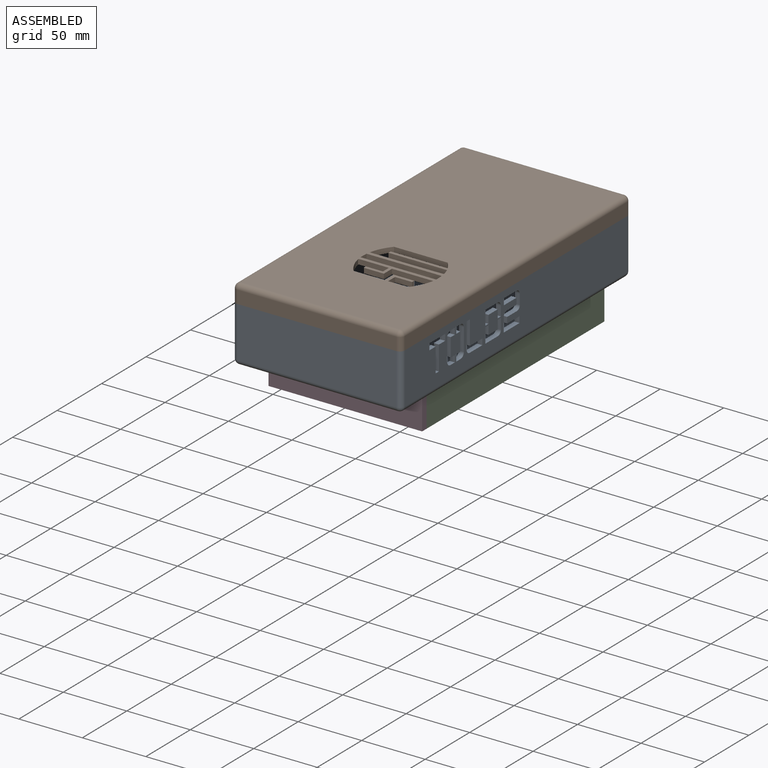
[diagram: assembled view]
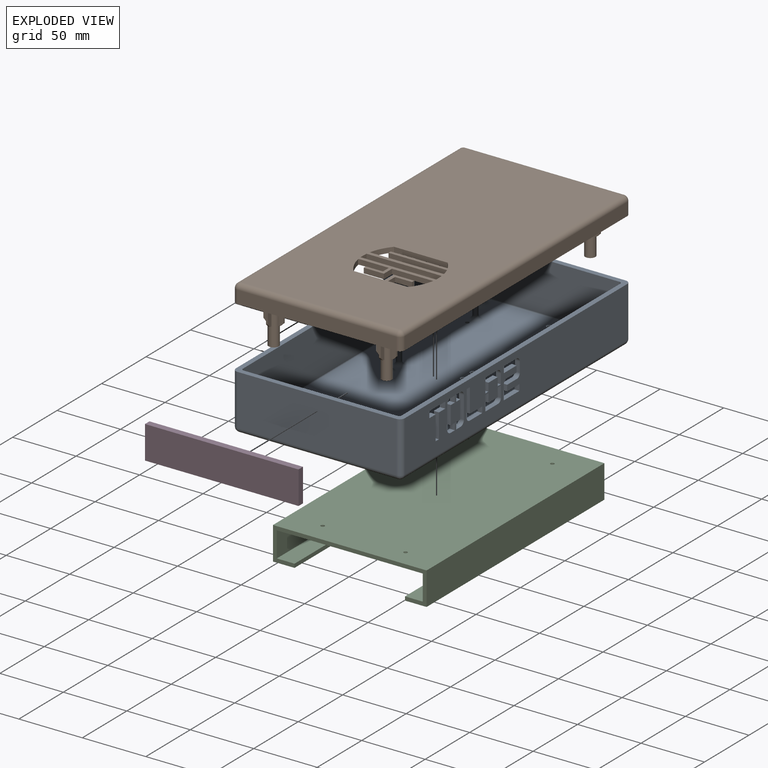
[diagram: exploded view]
GUIDED TOUR — FREECAD ASSEMBLY "FINALES"

This assembly has 4 components, labeled P0..P3 below (a component is one placed body or linked part; the same part can appear more than once), held together by 0 modeled joints plus 3 derived contact edges. A joint is a constraint between two components; its type names the relative motion it leaves free:
  CONTACT — a derived adjacency edge — the two components touch in the source model (clearance under 2% of the assembly's diagonal); it is measured from the geometry, not a modeled constraint.
Axis/direction vectors are unit vectors and 'through' points are millimeter coordinates, both in the assembly's world frame.

MATES
  1. CONTACT "contact_0_1": P0 <-> P1, contact direction (0.000, -0.298, 0.955) through (124.88, -1.33, 40.00) mm (derived from contact, not a modeled constraint)
  2. CONTACT "contact_0_2": P0 <-> P2, contact direction (0.000, 0.000, -1.000) through (97.41, -201.77, -4.00) mm (derived from contact, not a modeled constraint)
  3. CONTACT "contact_2_3": P2 <-> P3, contact direction (0.000, -1.000, 0.000) through (2.00, -217.00, -30.00) mm (derived from contact, not a modeled constraint)

ASSEMBLY ORDER
  1. P1 — the base component [order verified]
  2. P0 [order verified]
  3. P3 [order verified]
  4. P2 [order verified]
Order-tag legend:
  [order verified] — this step's position reverses a verified removal order: the component was checked to insert without passing through the ones already placed.

Of the 4 components, 4 carry a construction recipe — the FreeCAD feature program (sketches with constraints, then the solid features that consume them) that regenerates the part from scratch, quoted from this document or from the linked companion document it references; the rest are supplied as boundary geometry only. The tour below walks the components in assembly order: each is shown spotlighted twice — in the assembled view, then in the exploded view, where a leader line traces a displaced component back to its assembled socket (components that stay in place when exploded have no leader line; saturated green if recipe-attached, orange if geometry-only; every other component desaturated gray) — followed by its recipe or geometry summary and the mates that hold it.
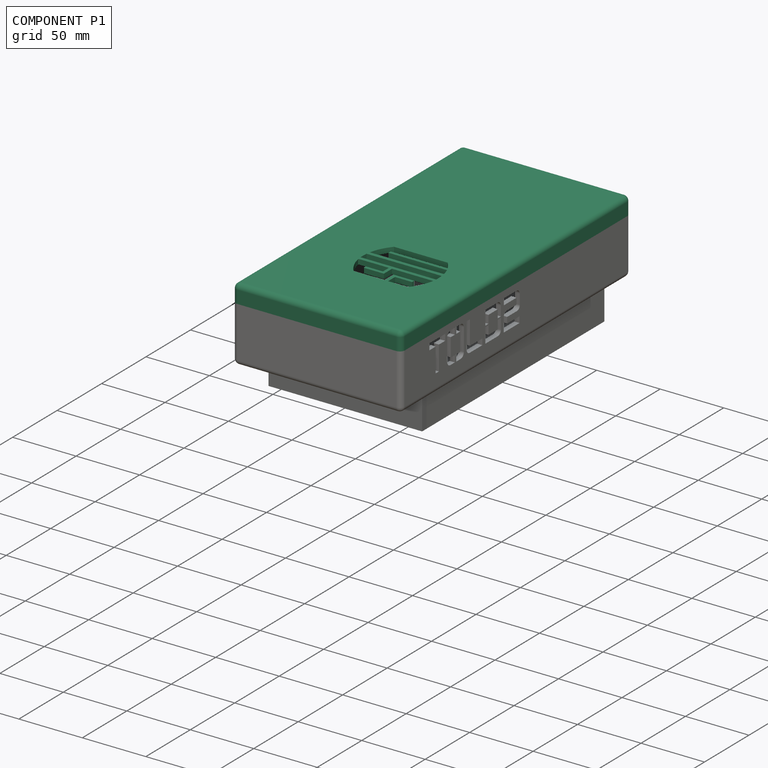
[diagram: component P1 — assembled]
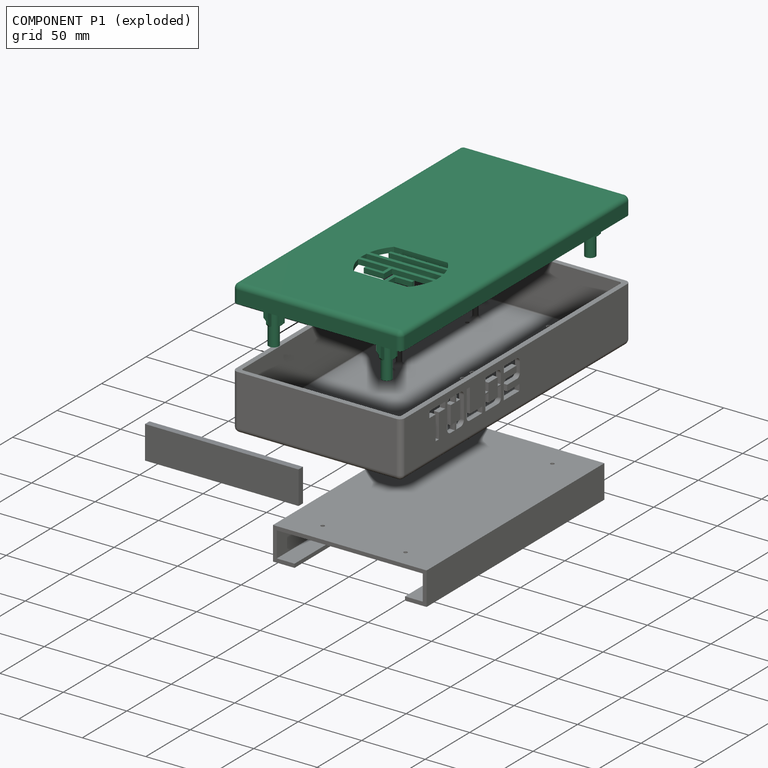
[diagram: component P1 — exploded]
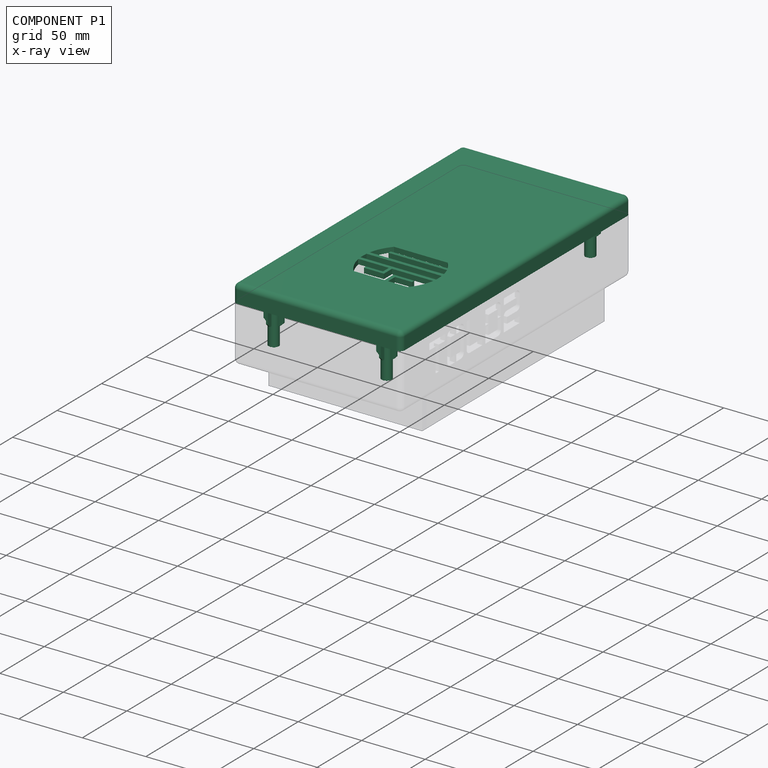
[diagram: component P1 — x-ray view]
COMPONENT P1 — recipe-attached ("Tapa", modeled in this document).
Held by: resting contact with P0 (derived edge).
Construction recipe (the document's own serialized feature program — sketch geometry with constraints, then the solid features built on it; lengths are millimeters unless a unit is written):

FEATURE [Sketcher::SketchObject] Sketch004
  FullyConstrained = true
  MapMode = 5
  Support = -> [XY_Plane001]
  sketch-geometry (4):
    g0: LineSegment StartX=0 StartY=0 StartZ=0 EndX=125 EndY=0 EndZ=0
    g1: LineSegment StartX=125 StartY=0 StartZ=0 EndX=125 EndY=-250 EndZ=0
    g2: LineSegment StartX=125 StartY=-250 StartZ=0 EndX=0 EndY=-250 EndZ=0
    g3: LineSegment StartX=0 StartY=-250 StartZ=0 EndX=0 EndY=0 EndZ=0
  constraints (11):
    c: Coincident(g0,g1)
    c: Coincident(g1,g2)
    c: Coincident(g2,g3)
    c: Coincident(g3,g0)
    c: Horizontal(g0)
    c: Horizontal(g2)
    c: Vertical(g1)
    c: Vertical(g3)
    c: Coincident(g0,g-1)
    c: DistanceY(g1,g1) = 250
    c: DistanceX(g2,g2) = 125
FEATURE [PartDesign::Pad] Pad004
  AlongSketchNormal = false
  Direction = (0,0,1)
  Length = 10
  Length2 = 100
  Profile = -> Sketch004
  Type = 0
FEATURE [PartDesign::Thickness] Thickness001
  Base = -> Pad004 [Face5]
  BaseFeature = -> Pad004
  Intersection = false
  Join = 0
  Mode = 0
  SupportTransform = false
  Value = 4
FEATURE [PartDesign::Fillet] Fillet004
  Base = -> Thickness001 [Edge1,Edge4,Edge12,Edge8,Edge10,Edge5,Edge7,Edge2]
  BaseFeature = -> Thickness001
  Radius = 2
  SupportTransform = false
  UseAllEdges = false
FEATURE [Sketcher::SketchObject] Sketch005
  ExternalGeometry = -> [Fillet004]
  FullyConstrained = true
  MapMode = 5
  Placement = pos=(0,0,10) rot=(1,0,0;3.14159rad)
  Support = -> [Fillet004]
  sketch-geometry (12):
    g0: Circle CenterX=18 CenterY=239 CenterZ=0 NormalX=0 NormalY=0 NormalZ=1 AngleXU=0 Radius=4
    g1: LineSegment StartX=18 StartY=239 StartZ=0 EndX=18 EndY=248 EndZ=0
    g2: LineSegment StartX=18 StartY=239 StartZ=0 EndX=2 EndY=239 EndZ=0
    g3: Circle CenterX=107 CenterY=239 CenterZ=0 NormalX=0 NormalY=0 NormalZ=1 AngleXU=0 Radius=4
    g4: LineSegment StartX=107 StartY=239 StartZ=0 EndX=123 EndY=239 EndZ=0
    g5: LineSegment StartX=107 StartY=239 StartZ=0 EndX=107 EndY=248 EndZ=0
    g6: Circle CenterX=18 CenterY=10 CenterZ=0 NormalX=0 NormalY=0 NormalZ=1 AngleXU=0 Radius=4
    g7: LineSegment StartX=18 StartY=10 StartZ=0 EndX=18 EndY=0 EndZ=0
    g8: LineSegment StartX=18 StartY=10 StartZ=0 EndX=2 EndY=10 EndZ=0
    g9: Circle CenterX=107 CenterY=10 CenterZ=0 NormalX=0 NormalY=0 NormalZ=1 AngleXU=0 Radius=4
    g10: LineSegment StartX=107 StartY=10 StartZ=0 EndX=123 EndY=10 EndZ=0
    g11: LineSegment StartX=107 StartY=10 StartZ=0 EndX=107 EndY=0 EndZ=0
  constraints (36):
    c: Coincident(g1,g0)
    c: PointOnObject(g1,g-3)
    c: Vertical(g1)
    c: Coincident(g2,g0)
    c: PointOnObject(g2,g-4)
    c: Horizontal(g2)
    c: DistanceY(g1,g1) = 9
    c: DistanceX(g2,g2) = 16
    c: Radius(g0) = 4
    c: Coincident(g4,g3)
    c: PointOnObject(g4,g-5)
    c: Horizontal(g4)
    c: Coincident(g5,g3)
    c: PointOnObject(g5,g-3)
    c: Vertical(g5)
    c: Radius(g3) = 4
    c: DistanceX(g4,g4) = 16
    c: DistanceY(g5,g5) = 9
    c: Radius(g6) = 4
    c: Coincident(g7,g6)
    c: PointOnObject(g7,g-1)
    c: Vertical(g7)
    c: DistanceY(g7,g7) = 10
    c: Coincident(g8,g6)
    c: PointOnObject(g8,g-4)
    c: Horizontal(g8)
    c: DistanceX(g8,g8) = 16
    c: Coincident(g10,g9)
    c: PointOnObject(g10,g-5)
    c: Horizontal(g10)
    c: DistanceX(g10,g10) = 16
    c: Coincident(g11,g9)
    c: PointOnObject(g11,g-1)
    c: Vertical(g11)
    c: DistanceY(g11,g11) = 10
    c: Radius(g9) = 4
FEATURE [PartDesign::Pad] Pad005
  AlongSketchNormal = false
  BaseFeature = -> Fillet004
  Direction = (0,0,-1)
  Length = 40
  Length2 = 100
  Profile = -> Sketch005
  Type = 0
FEATURE [PartDesign::Pad] Pad006
  AlongSketchNormal = false
  BaseFeature = -> Pad005
  Direction = (0,0,-1)
  Length = 10
  Length2 = 100
  Profile = -> Pad005 [Face42,Face43,Face40,Face41]
  Reversed = true
  Type = 3
  UpToFace = -> Pad005 [Face39]
FEATURE [Sketcher::SketchObject] Sketch006
  ExternalGeometry = -> [Pad006]
  FullyConstrained = true
  MapMode = 5
  Placement = pos=(0,0,10) rot=(1,0,0;3.14159rad)
  Support = -> [Pad006]
  sketch-geometry (4):
    g0: Circle CenterX=107 CenterY=10 CenterZ=0 NormalX=0 NormalY=0 NormalZ=1 AngleXU=0 Radius=1.26
    g1: Circle CenterX=18 CenterY=10 CenterZ=0 NormalX=0 NormalY=0 NormalZ=1 AngleXU=0 Radius=1.26
    g2: Circle CenterX=18 CenterY=239 CenterZ=0 NormalX=0 NormalY=0 NormalZ=1 AngleXU=0 Radius=1.26
    g3: Circle CenterX=107 CenterY=239 CenterZ=0 NormalX=0 NormalY=0 NormalZ=1 AngleXU=0 Radius=1.26
  constraints (8):
    c: Coincident(g0,g-6)
    c: Coincident(g1,g-5)
    c: Coincident(g2,g-4)
    c: Coincident(g3,g-3)
    c: Equal(g3,g2)
    c: Equal(g2,g1)
    c: Equal(g1,g0)
    c: Radius(g1) = 1.26
FEATURE [PartDesign::Pocket] Pocket002
  BaseFeature = -> Pad006
  Direction = (1,1,1)
  Length = 5
  Length2 = 100
  Profile = -> Sketch006
  Reversed = true
  Type = 1
FEATURE [PartDesign::SubShapeBinder] Import  label="Import(path873)"
  BindCopyOnChange = 0
  BindMode = 0
  ClaimChildren = false
  Context = -> Part001 [Body001.Import.]
  Fuse = false
  MakeFace = false
  OffsetFill = false
  OffsetIntersection = false
  OffsetJoinType = 0
  OffsetOpenResult = false
  PartialLoad = false
  Relative = true
  Support = -> [path873]
  _Version = 8
FEATURE [PartDesign::Pocket] Pocket003
  BaseFeature = -> Pocket002
  Direction = (1,1,1)
  Length = 5
  Length2 = 100
  Profile = -> Import
  Type = 0
FEATURE [PartDesign::SubShapeBinder] Import001  label="Import001(path875)"
  BindCopyOnChange = 0
  BindMode = 0
  ClaimChildren = false
  Context = -> Part001 [Body001.Import001.]
  Fuse = false
  MakeFace = false
  OffsetFill = false
  OffsetIntersection = false
  OffsetJoinType = 0
  OffsetOpenResult = false
  PartialLoad = false
  Relative = true
  Support = -> [path875]
  _Version = 8
FEATURE [PartDesign::Pocket] Pocket004
  BaseFeature = -> Pocket003
  Direction = (1,1,1)
  Length = 5
  Length2 = 100
  Profile = -> Import001
  Type = 0
FEATURE [PartDesign::SubShapeBinder] Import002  label="Import002(path871)"
  BindCopyOnChange = 0
  BindMode = 0
  ClaimChildren = false
  Context = -> Part001 [Body001.Import002.]
  Fuse = false
  MakeFace = false
  OffsetFill = false
  OffsetIntersection = false
  OffsetJoinType = 0
  OffsetOpenResult = false
  PartialLoad = false
  Relative = true
  Support = -> [path871]
  _Version = 8
FEATURE [PartDesign::Pocket] Pocket005
  BaseFeature = -> Pocket004
  Direction = (0,0,-1)
  Length = 5
  Length2 = 100
  Profile = -> Import002
  Type = 0
FEATURE [Sketcher::SketchObject] Sketch007
  FullyConstrained = false
  MapMode = 5
  Placement = pos=(0,0,10) rot=(1,0,0;3.14159rad)
  Support = -> [Pocket005]
  sketch-geometry (68):
    g0: LineSegment StartX=17.395 StartY=242.881 StartZ=0 EndX=18.895 EndY=242.881 EndZ=0
    g1: LineSegment StartX=18.895 StartY=242.881 StartZ=0 EndX=18.895 EndY=246.881 EndZ=0
    g2: LineSegment StartX=18.895 StartY=246.881 StartZ=0 EndX=17.395 EndY=246.881 EndZ=0
    g3: LineSegment StartX=17.395 StartY=246.881 StartZ=0 EndX=17.395 EndY=242.881 EndZ=0
    g4: LineSegment StartX=17.2583 StartY=235.041 StartZ=0 EndX=18.7583 EndY=235.041 EndZ=0
    g5: LineSegment StartX=18.7583 StartY=235.041 StartZ=0 EndX=18.7583 EndY=232.041 EndZ=0
    g6: LineSegment StartX=18.7583 StartY=232.041 StartZ=0 EndX=17.2583 EndY=232.041 EndZ=0
    g7: LineSegment StartX=17.2583 StartY=232.041 StartZ=0 EndX=17.2583 EndY=235.041 EndZ=0
    g8: LineSegment StartX=21.9214 StartY=239.356 StartZ=0 EndX=25.9214 EndY=239.356 EndZ=0
    g9: LineSegment StartX=25.9214 StartY=239.356 StartZ=0 EndX=25.9214 EndY=237.856 EndZ=0
    g10: LineSegment StartX=25.9214 StartY=237.856 StartZ=0 EndX=21.9214 EndY=237.856 EndZ=0
    g11: LineSegment StartX=21.9214 StartY=237.856 StartZ=0 EndX=21.9214 EndY=239.356 EndZ=0
    g12: LineSegment StartX=14.1091 StartY=239.356 StartZ=0 EndX=10.1091 EndY=239.356 EndZ=0
    g13: LineSegment StartX=10.1091 StartY=239.356 StartZ=0 EndX=10.1091 EndY=237.856 EndZ=0
    g14: LineSegment StartX=10.1091 StartY=237.856 StartZ=0 EndX=14.1091 EndY=237.856 EndZ=0
    g15: LineSegment StartX=14.1091 StartY=237.856 StartZ=0 EndX=14.1091 EndY=239.356 EndZ=0
    g16: LineSegment StartX=21.9214 StartY=239.356 StartZ=0 EndX=14.1091 EndY=239.356 EndZ=0
    g17: LineSegment StartX=106.3 StartY=242.893 StartZ=0 EndX=107.8 EndY=242.893 EndZ=0
    g18: LineSegment StartX=107.8 StartY=242.893 StartZ=0 EndX=107.8 EndY=246.893 EndZ=0
    g19: LineSegment StartX=107.8 StartY=246.893 StartZ=0 EndX=106.3 EndY=246.893 EndZ=0
    g20: LineSegment StartX=106.3 StartY=246.893 StartZ=0 EndX=106.3 EndY=242.893 EndZ=0
    g21: LineSegment StartX=106.24 StartY=235.097 StartZ=0 EndX=107.74 EndY=235.097 EndZ=0
    g22: LineSegment StartX=107.74 StartY=235.097 StartZ=0 EndX=107.74 EndY=231.097 EndZ=0
    g23: LineSegment StartX=107.74 StartY=231.097 StartZ=0 EndX=106.24 EndY=231.097 EndZ=0
    g24: LineSegment StartX=106.24 StartY=231.097 StartZ=0 EndX=106.24 EndY=235.097 EndZ=0
    g25: LineSegment StartX=110.88 StartY=239.6 StartZ=0 EndX=114.88 EndY=239.6 EndZ=0
    g26: LineSegment StartX=114.88 StartY=239.6 StartZ=0 EndX=114.88 EndY=238.1 EndZ=0
    g27: LineSegment StartX=114.88 StartY=238.1 StartZ=0 EndX=110.88 EndY=238.1 EndZ=0
    g28: LineSegment StartX=110.88 StartY=238.1 StartZ=0 EndX=110.88 EndY=239.6 EndZ=0
    g29: LineSegment StartX=103.116 StartY=239.665 StartZ=0 EndX=99.1165 EndY=239.665 EndZ=0
    g30: LineSegment StartX=99.1165 StartY=239.665 StartZ=0 EndX=99.1165 EndY=238.165 EndZ=0
    g31: LineSegment StartX=99.1165 StartY=238.165 StartZ=0 EndX=103.116 EndY=238.165 EndZ=0
    g32: LineSegment StartX=103.116 StartY=238.165 StartZ=0 EndX=103.116 EndY=239.665 EndZ=0
    g33: LineSegment StartX=107.899 StartY=6.13942 StartZ=0 EndX=106.399 EndY=6.13942 EndZ=0
    g34: LineSegment StartX=106.399 StartY=6.13942 StartZ=0 EndX=106.399 EndY=2.63942 EndZ=0
    g35: LineSegment StartX=106.399 StartY=2.63942 StartZ=0 EndX=107.899 EndY=2.63942 EndZ=0
    g36: LineSegment StartX=107.899 StartY=2.63942 StartZ=0 EndX=107.899 EndY=6.13942 EndZ=0
    g37: LineSegment StartX=103.112 StartY=9.19621 StartZ=0 EndX=99.1124 EndY=9.19621 EndZ=0
    g38: LineSegment StartX=99.1124 StartY=9.19621 StartZ=0 EndX=99.1124 EndY=10.6962 EndZ=0
    g39: LineSegment StartX=99.1124 StartY=10.6962 StartZ=0 EndX=103.112 EndY=10.6962 EndZ=0
    g40: LineSegment StartX=103.112 StartY=10.6962 StartZ=0 EndX=103.112 EndY=9.19621 EndZ=0
    g41: LineSegment StartX=107.749 StartY=13.8535 StartZ=0 EndX=106.249 EndY=13.8535 EndZ=0
    g42: LineSegment StartX=106.249 StartY=13.8535 StartZ=0 EndX=106.249 EndY=17.8535 EndZ=0
    g43: LineSegment StartX=106.249 StartY=17.8535 StartZ=0 EndX=107.749 EndY=17.8535 EndZ=0
    g44: LineSegment StartX=107.749 StartY=17.8535 StartZ=0 EndX=107.749 EndY=13.8535 EndZ=0
    g45: LineSegment StartX=110.854 StartY=9.19621 StartZ=0 EndX=114.854 EndY=9.19621 EndZ=0
    g46: LineSegment StartX=114.854 StartY=9.19621 StartZ=0 EndX=114.854 EndY=10.6962 EndZ=0
    g47: LineSegment StartX=114.854 StartY=10.6962 StartZ=0 EndX=110.854 EndY=10.6962 EndZ=0
    g48: LineSegment StartX=110.854 StartY=10.6962 StartZ=0 EndX=110.854 EndY=9.19621 EndZ=0
    g49: LineSegment StartX=103.112 StartY=10.6962 StartZ=0 EndX=110.854 EndY=10.6962 EndZ=0
    g50: LineSegment StartX=21.9263 StartY=10.7245 StartZ=0 EndX=25.9263 EndY=10.7245 EndZ=0
    g51: LineSegment StartX=25.9263 StartY=10.7245 StartZ=0 EndX=25.9263 EndY=9.22454 EndZ=0
    g52: LineSegment StartX=25.9263 StartY=9.22454 StartZ=0 EndX=21.9263 EndY=9.22454 EndZ=0
    g53: LineSegment StartX=21.9263 StartY=9.22454 StartZ=0 EndX=21.9263 EndY=10.7245 EndZ=0
    g54: LineSegment StartX=17.2823 StartY=6.25988 StartZ=0 EndX=18.7823 EndY=6.25988 EndZ=0
    g55: LineSegment StartX=18.7823 StartY=6.25988 StartZ=0 EndX=18.7823 EndY=2.25988 EndZ=0
    g56: LineSegment StartX=18.7823 StartY=2.25988 StartZ=0 EndX=17.2823 EndY=2.25988 EndZ=0
    g57: LineSegment StartX=17.2823 StartY=2.25988 StartZ=0 EndX=17.2823 EndY=6.25988 EndZ=0
    g58: LineSegment StartX=14.1682 StartY=10.7245 StartZ=0 EndX=10.1682 EndY=10.7245 EndZ=0
    g59: LineSegment StartX=10.1682 StartY=10.7245 StartZ=0 EndX=10.1682 EndY=9.22454 EndZ=0
    g60: LineSegment StartX=10.1682 StartY=9.22454 StartZ=0 EndX=14.1682 EndY=9.22454 EndZ=0
    g61: LineSegment StartX=14.1682 StartY=9.22454 StartZ=0 EndX=14.1682 EndY=10.7245 EndZ=0
    g62: LineSegment StartX=17.2823 StartY=13.9013 StartZ=0 EndX=18.7823 EndY=13.9013 EndZ=0
    g63: LineSegment StartX=18.7823 StartY=13.9013 StartZ=0 EndX=18.7823 EndY=17.9013 EndZ=0
    g64: LineSegment StartX=18.7823 StartY=17.9013 StartZ=0 EndX=17.2823 EndY=17.9013 EndZ=0
    g65: LineSegment StartX=17.2823 StartY=17.9013 StartZ=0 EndX=17.2823 EndY=13.9013 EndZ=0
    g66: LineSegment StartX=21.9263 StartY=10.7245 StartZ=0 EndX=14.1682 EndY=10.7245 EndZ=0
    g67: LineSegment StartX=17.2823 StartY=13.9013 StartZ=0 EndX=17.2823 EndY=6.25988 EndZ=0
  constraints (172):
    c: Coincident(g0,g1)
    c: Coincident(g1,g2)
    c: Coincident(g2,g3)
    c: Coincident(g3,g0)
    c: Horizontal(g0)
    c: Horizontal(g2)
    c: Vertical(g1)
    c: Vertical(g3)
    c: DistanceY(g1,g1) = 4
    c: DistanceX(g2,g2) = 1.5
    c: Coincident(g4,g5)
    c: Coincident(g5,g6)
    c: Coincident(g6,g7)
    c: Coincident(g7,g4)
    c: Horizontal(g4)
    c: Horizontal(g6)
    c: Vertical(g5)
    c: Vertical(g7)
    c: DistanceY(g5,g5) = 3
    c: DistanceX(g6,g6) = 1.5
    c: Coincident(g8,g9)
    c: Coincident(g9,g10)
    c: Coincident(g10,g11)
    c: Coincident(g11,g8)
    c: Horizontal(g8)
    c: Horizontal(g10)
    c: Vertical(g9)
    c: Vertical(g11)
    c: DistanceY(g9,g9) = 1.5
    c: DistanceX(g8,g8) = 4
    c: Coincident(g12,g13)
    c: Coincident(g13,g14)
    c: Coincident(g14,g15)
    c: Coincident(g15,g12)
    c: Horizontal(g12)
    c: Horizontal(g14)
    c: Vertical(g13)
    c: Vertical(g15)
    c: Coincident(g16,g8)
    c: Coincident(g16,g12)
    c: Horizontal(g16)
    c: DistanceX(g12,g12) = 4
    c: DistanceY(g13,g13) = 1.5
    c: Coincident(g17,g18)
    c: Coincident(g18,g19)
    c: Coincident(g19,g20)
    c: Coincident(g20,g17)
    c: Horizontal(g17)
    c: Horizontal(g19)
    c: Vertical(g18)
    c: Vertical(g20)
    c: Coincident(g21,g22)
    c: Coincident(g22,g23)
    c: Coincident(g23,g24)
    c: Coincident(g24,g21)
    c: Horizontal(g21)
    c: Horizontal(g23)
    c: Vertical(g22)
    c: Vertical(g24)
    c: Coincident(g25,g26)
    c: Coincident(g26,g27)
    c: Coincident(g27,g28)
    c: Coincident(g28,g25)
    c: Horizontal(g25)
    c: Horizontal(g27)
    c: Vertical(g26)
    c: Vertical(g28)
    c: DistanceX(g17,g17) = 1.5
    c: DistanceY(g18,g18) = 4
    c: DistanceY(g28,g28) = 1.5
    c: DistanceX(g25,g25) = 4
    c: DistanceX(g21,g21) = 1.5
    c: DistanceY(g22,g22) = 4
    c: Coincident(g29,g30)
    c: Coincident(g30,g31)
    c: Coincident(g31,g32)
    c: Coincident(g32,g29)
    c: Horizontal(g29)
    c: Horizontal(g31)
    c: Vertical(g30)
    c: Vertical(g32)
    c: DistanceY(g32,g32) = 1.5
    c: DistanceX(g31,g31) = 4
    c: Coincident(g33,g34)
    c: Coincident(g34,g35)
    c: Coincident(g35,g36)
    c: Coincident(g36,g33)
    c: Horizontal(g33)
    c: Horizontal(g35)
    c: Vertical(g34)
    c: Vertical(g36)
    c: Coincident(g37,g38)
    c: Coincident(g38,g39)
    c: Coincident(g39,g40)
    c: Coincident(g40,g37)
    c: Horizontal(g37)
    c: Horizontal(g39)
    c: Vertical(g38)
    c: Vertical(g40)
    c: Coincident(g41,g42)
    c: Coincident(g42,g43)
    c: Coincident(g43,g44)
    c: Coincident(g44,g41)
    c: Horizontal(g41)
    c: Horizontal(g43)
    c: Vertical(g42)
    c: Vertical(g44)
    c: Coincident(g45,g46)
    c: Coincident(g46,g47)
    c: Coincident(g47,g48)
    c: Coincident(g48,g45)
    c: Horizontal(g45)
    c: Horizontal(g47)
    c: Vertical(g46)
    c: Vertical(g48)
    c: DistanceX(g33,g33) = 1.5
    c: DistanceY(g34,g34) = 3.5
    c: DistanceY(g48,g48) = 1.5
    c: DistanceX(g47,g47) = 4
    c: DistanceY(g40,g40) = 1.5
    c: Coincident(g49,g39)
    c: Coincident(g49,g47)
    c: Horizontal(g49)
    c: DistanceX(g39,g39) = 4
    c: DistanceX(g41,g41) = 1.5
    c: DistanceY(g44,g44) = 4
    c: Coincident(g50,g51)
    c: Coincident(g51,g52)
    c: Coincident(g52,g53)
    c: Coincident(g53,g50)
    c: Horizontal(g50)
    c: Horizontal(g52)
    c: Vertical(g51)
    c: Vertical(g53)
    c: Coincident(g54,g55)
    c: Coincident(g55,g56)
    c: Coincident(g56,g57)
    c: Coincident(g57,g54)
    c: Horizontal(g54)
    c: Horizontal(g56)
    c: Vertical(g55)
    c: Vertical(g57)
    c: Coincident(g58,g59)
    c: Coincident(g59,g60)
    c: Coincident(g60,g61)
    c: Coincident(g61,g58)
    c: Horizontal(g58)
    c: Horizontal(g60)
    c: Vertical(g59)
    c: Vertical(g61)
    c: Coincident(g62,g63)
    c: Coincident(g63,g64)
    c: Coincident(g64,g65)
    c: Coincident(g65,g62)
    c: Horizontal(g62)
    c: Horizontal(g64)
    c: Vertical(g63)
    c: Vertical(g65)
    c: DistanceY(g53,g53) = 1.5
    c: DistanceX(g50,g50) = 4
    c: DistanceX(g54,g54) = 1.5
    c: DistanceY(g55,g55) = 4
    c: DistanceX(g58,g58) = 4
    c: DistanceY(g61,g61) = 1.5
    c: Coincident(g66,g50)
    c: Coincident(g66,g58)
    c: Horizontal(g66)
    c: Coincident(g67,g62)
    c: Coincident(g67,g54)
    c: Vertical(g67)
    c: DistanceX(g62,g62) = 1.5
    c: DistanceY(g63,g63) = 4
FEATURE [PartDesign::Pad] Pad007
  BaseFeature = -> Pocket005
  Direction = (0,0,-1)
  Length = 25
  Length2 = 10
  Profile = -> Sketch007
  ReferenceAxis = -> Sketch007 [N_Axis]
  Type = 0
FEATURE [PartDesign::Chamfer] Chamfer
  Angle = 45
  Base = -> Pad007 [Edge350,Edge321,Edge340,Edge345,Edge445,Edge474,Edge469,Edge464,Edge429,Edge408,Edge439,Edge434,Edge233,Edge210,Edge247,Edge242]
  BaseFeature = -> Pad007
  ChamferType = 0
  FlipDirection = false
  Size = 2.5
  Size2 = 1
  SupportTransform = false
  UseAllEdges = false
FEATURE [PartDesign::Fillet] Fillet005
  Base = -> Chamfer [Edge449,Edge195,Edge450,Edge188,Edge176,Edge451,Edge9,Edge6,Edge483,Edge299,Edge484,Edge291,Edge306,Edge482,Edge481,Edge270,Edge493,Edge438,Edge494,Edge432,Edge411,Edge491,Edge492,Edge445,Edge488,Edge396,Edge487,Edge403,Edge489,Edge388,Edge486,Edge365]
  BaseFeature = -> Chamfer
  Radius = 1
  SupportTransform = false
  UseAllEdges = false
FEATURE [PartDesign::Body] Body001
  Group = -> [Sketch004,Pad004,Thickness001,Fillet004,Sketch005,Pad005,Pad006,Sketch006,Pocket002,Import,Pocket003,Import001,Pocket004,Import002,Pocket005,Sketch007,Pad007,Chamfer,Fillet005]
  Origin = -> Origin003
  Tip = -> Fillet005
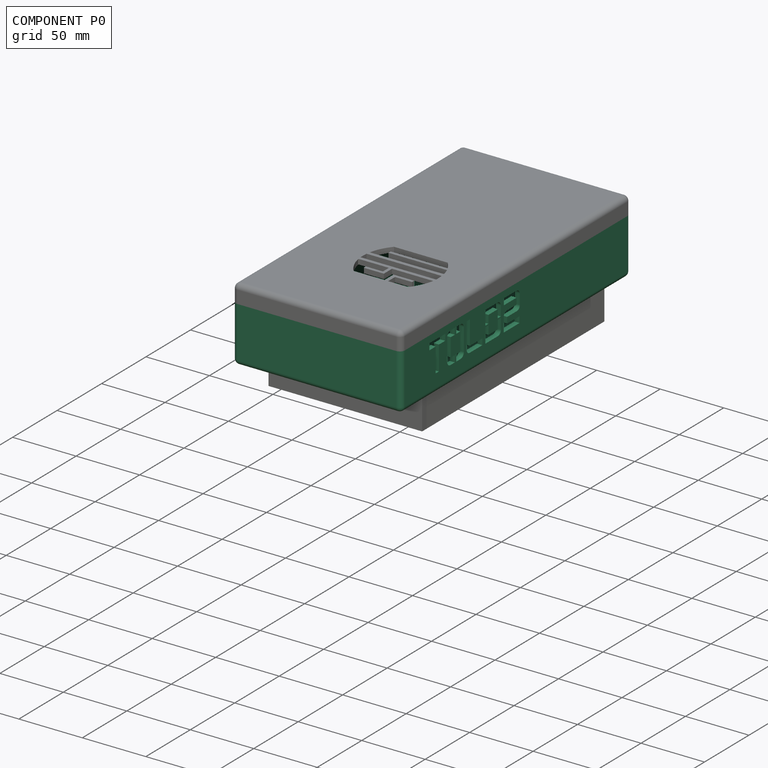
[diagram: component P0 — assembled]
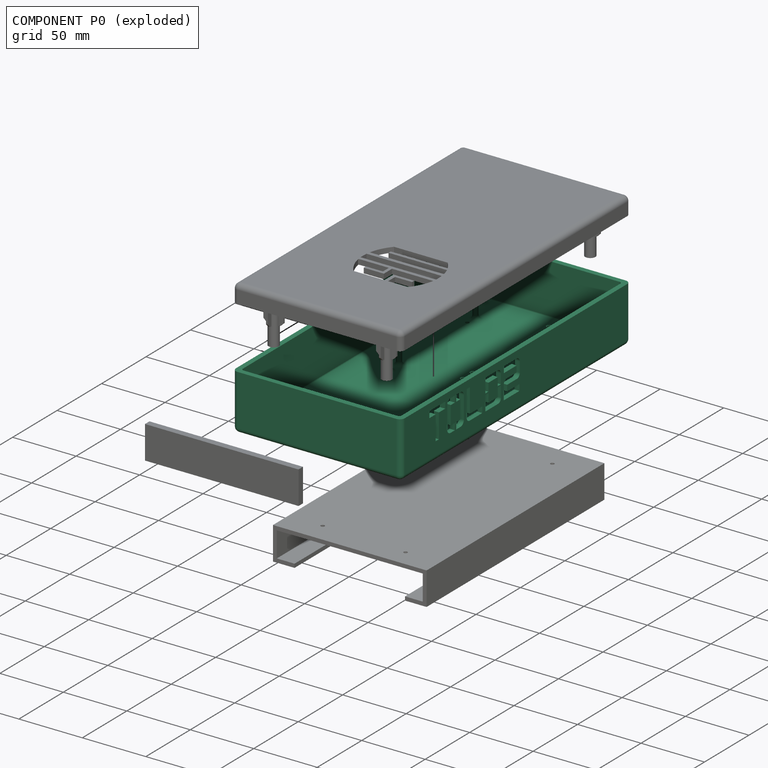
[diagram: component P0 — exploded]
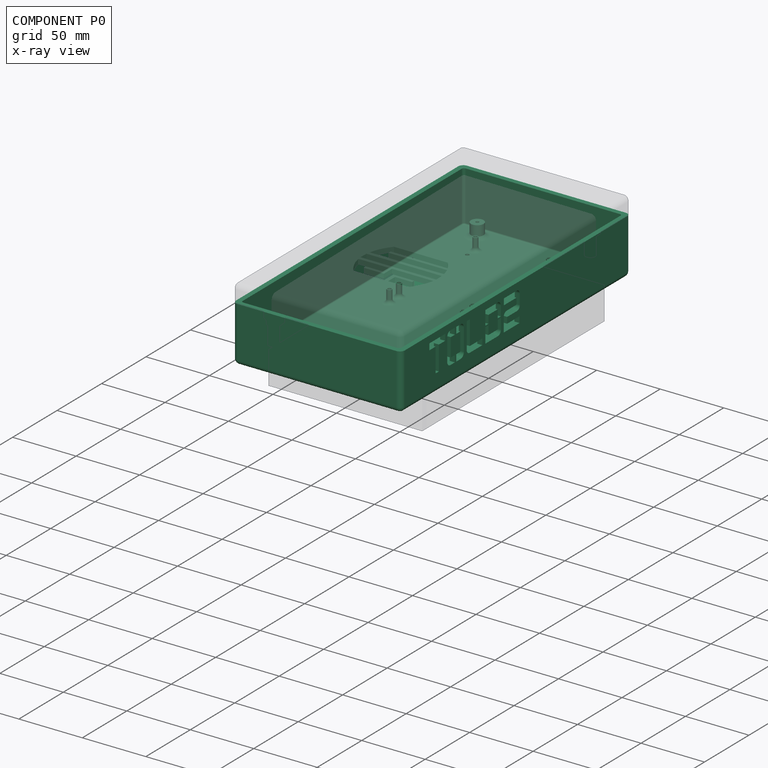
[diagram: component P0 — x-ray view]
COMPONENT P0 — recipe-attached ("Cuerpo", modeled in this document).
Held by: resting contact with P1 (derived edge); resting contact with P2 (derived edge).
Construction recipe (the document's own serialized feature program — sketch geometry with constraints, then the solid features built on it; lengths are millimeters unless a unit is written):

FEATURE [Sketcher::SketchObject] Sketch
  FullyConstrained = true
  MapMode = 5
  Support = -> [XY_Plane]
  sketch-geometry (4):
    g0: LineSegment StartX=0 StartY=0 StartZ=0 EndX=125 EndY=0 EndZ=0
    g1: LineSegment StartX=125 StartY=0 StartZ=0 EndX=125 EndY=-250 EndZ=0
    g2: LineSegment StartX=125 StartY=-250 StartZ=0 EndX=0 EndY=-250 EndZ=0
    g3: LineSegment StartX=0 StartY=-250 StartZ=0 EndX=0 EndY=0 EndZ=0
  constraints (11):
    c: Coincident(g0,g1)
    c: Coincident(g1,g2)
    c: Coincident(g2,g3)
    c: Coincident(g3,g0)
    c: Horizontal(g0)
    c: Horizontal(g2)
    c: Vertical(g1)
    c: Vertical(g3)
    c: Coincident(g0,g-1)
    c: DistanceY(g1,g1) = 250
    c: DistanceX(g2,g2) = 125
FEATURE [PartDesign::Pad] Pad
  AlongSketchNormal = false
  Direction = (0,0,1)
  Length = 40
  Length2 = 100
  Profile = -> Sketch
  Type = 0
FEATURE [PartDesign::Thickness] Thickness
  Base = -> Pad [Face6]
  BaseFeature = -> Pad
  Intersection = false
  Join = 0
  Mode = 0
  SupportTransform = false
  Value = 4
FEATURE [PartDesign::Fillet] Fillet
  Base = -> Thickness [Edge1,Edge2,Edge8,Edge5]
  BaseFeature = -> Thickness
  Radius = 2
  SupportTransform = false
  UseAllEdges = false
FEATURE [Sketcher::SketchObject] Sketch001
  ExternalGeometry = -> [Fillet]
  FullyConstrained = false
  MapMode = 5
  Support = -> [Fillet]
  sketch-geometry (16):
    g0: Circle CenterX=29.8532 CenterY=-29.0023 CenterZ=0 NormalX=0 NormalY=0 NormalZ=1 AngleXU=0 Radius=1.45
    g1: Circle CenterX=87.866 CenterY=-29.0145 CenterZ=0 NormalX=0 NormalY=0 NormalZ=1 AngleXU=0 Radius=1.45
    g2: Circle CenterX=29.8312 CenterY=-115.003 CenterZ=0 NormalX=0 NormalY=0 NormalZ=1 AngleXU=0 Radius=1.45
    g3: Circle CenterX=87.865 CenterY=-115.008 CenterZ=0 NormalX=0 NormalY=0 NormalZ=1 AngleXU=0 Radius=1.45
    g4: Circle CenterX=29.9971 CenterY=-126.001 CenterZ=0 NormalX=0 NormalY=0 NormalZ=1 AngleXU=0 Radius=1.4
    g5: Circle CenterX=88.0054 CenterY=-126.011 CenterZ=0 NormalX=0 NormalY=0 NormalZ=1 AngleXU=0 Radius=1.4
    g6: Circle CenterX=87.9933 CenterY=-211.995 CenterZ=0 NormalX=0 NormalY=0 NormalZ=1 AngleXU=0 Radius=1.4
    g7: Circle CenterX=30.0082 CenterY=-211.995 CenterZ=0 NormalX=0 NormalY=0 NormalZ=1 AngleXU=0 Radius=1.4
    g8: Circle CenterX=29.8532 CenterY=-29.0023 CenterZ=0 NormalX=0 NormalY=0 NormalZ=1 AngleXU=0 Radius=2
    g9: Circle CenterX=87.866 CenterY=-29.0145 CenterZ=0 NormalX=0 NormalY=0 NormalZ=1 AngleXU=0 Radius=2
    g10: Circle CenterX=29.8312 CenterY=-115.003 CenterZ=0 NormalX=0 NormalY=0 NormalZ=1 AngleXU=0 Radius=2
    g11: Circle CenterX=87.865 CenterY=-115.008 CenterZ=0 NormalX=0 NormalY=0 NormalZ=1 AngleXU=0 Radius=2
    g12: Circle CenterX=88.0054 CenterY=-126.011 CenterZ=0 NormalX=0 NormalY=0 NormalZ=1 AngleXU=0 Radius=2
    g13: Circle CenterX=29.9971 CenterY=-126.001 CenterZ=0 NormalX=0 NormalY=0 NormalZ=1 AngleXU=0 Radius=2
    g14: Circle CenterX=87.9933 CenterY=-211.995 CenterZ=0 NormalX=0 NormalY=0 NormalZ=1 AngleXU=0 Radius=2
    g15: Circle CenterX=30.0082 CenterY=-211.995 CenterZ=0 NormalX=0 NormalY=0 NormalZ=1 AngleXU=0 Radius=2
  constraints (24):
    c: Radius(g0) = 1.45
    c: Radius(g1) = 1.45
    c: Radius(g2) = 1.45
    c: Radius(g3) = 1.45
    c: Radius(g4) = 1.4
    c: Radius(g5) = 1.4
    c: Radius(g6) = 1.4
    c: Radius(g7) = 1.4
    c: Coincident(g8,g0)
    c: Radius(g8) = 2
    c: Coincident(g9,g1)
    c: Radius(g9) = 2
    c: Coincident(g10,g2)
    c: Radius(g10) = 2
    c: Coincident(g11,g3)
    c: Radius(g11) = 2
    c: Coincident(g12,g5)
    c: Radius(g12) = 2
    c: Coincident(g13,g4)
    c: Radius(g13) = 2
    c: Coincident(g14,g6)
    c: Radius(g14) = 2
    c: Coincident(g15,g7)
    c: Radius(g15) = 2
FEATURE [PartDesign::Pad] Pad001
  AlongSketchNormal = false
  BaseFeature = -> Fillet
  Direction = (0,0,1)
  Length = 10
  Length2 = 100
  Profile = -> Sketch001
  Type = 0
FEATURE [PartDesign::Fillet] Fillet001
  Base = -> Pad001 [Edge1,Edge8,Edge6,Edge5,Edge7,Edge9,Edge11,Edge10]
  BaseFeature = -> Pad001
  Radius = 1
  SupportTransform = false
  UseAllEdges = false
FEATURE [PartDesign::Fillet] Fillet002
  Base = -> Fillet001 [Edge39,Edge40,Edge43,Edge44,Edge37,Edge38,Edge41,Edge42]
  BaseFeature = -> Fillet001
  Radius = 3
  SupportTransform = false
  UseAllEdges = false
FEATURE [Sketcher::SketchObject] Sketch002
  ExternalGeometry = -> [Fillet002]
  FullyConstrained = false
  MapMode = 5
  Support = -> [Fillet002]
  sketch-geometry (12):
    g0: Circle CenterX=18 CenterY=-239 CenterZ=0 NormalX=0 NormalY=0 NormalZ=1 AngleXU=0 Radius=4
    g1: LineSegment StartX=18 StartY=-239 StartZ=0 EndX=1 EndY=-239 EndZ=0
    g2: LineSegment StartX=18 StartY=-239 StartZ=0 EndX=18 EndY=-249 EndZ=0
    g3: Circle CenterX=107 CenterY=-239 CenterZ=0 NormalX=0 NormalY=0 NormalZ=1 AngleXU=0 Radius=4
    g4: LineSegment StartX=107 StartY=-239 StartZ=0 EndX=124 EndY=-239 EndZ=0
    g5: LineSegment StartX=107 StartY=-239 StartZ=0 EndX=107 EndY=-249 EndZ=0
    g6: Circle CenterX=18 CenterY=-10 CenterZ=0 NormalX=0 NormalY=0 NormalZ=1 AngleXU=0 Radius=4
    g7: LineSegment StartX=18 StartY=-10 StartZ=0 EndX=1 EndY=-10 EndZ=0
    g8: LineSegment StartX=18 StartY=-10 StartZ=0 EndX=18 EndY=-1 EndZ=0
    g9: Circle CenterX=107 CenterY=-10 CenterZ=0 NormalX=0 NormalY=0 NormalZ=1 AngleXU=0 Radius=4
    g10: LineSegment StartX=107 StartY=-10 StartZ=0 EndX=124 EndY=-10 EndZ=0
    g11: LineSegment StartX=107 StartY=-10 StartZ=0 EndX=101.713 EndY=-1 EndZ=0
  constraints (35):
    c: Radius(g0) = 4
    c: Coincident(g1,g0)
    c: PointOnObject(g1,g-3)
    c: Horizontal(g1)
    c: Coincident(g2,g0)
    c: PointOnObject(g2,g-6)
    c: Vertical(g2)
    c: DistanceX(g1,g1) = 17
    c: DistanceY(g2,g2) = 10
    c: Radius(g3) = 4
    c: Coincident(g4,g3)
    c: PointOnObject(g4,g-5)
    c: Horizontal(g4)
    c: Coincident(g5,g3)
    c: PointOnObject(g5,g-6)
    c: Vertical(g5)
    c: DistanceX(g4,g4) = 17
    c: DistanceY(g5,g5) = 10
    c: Radius(g6) = 4
    c: Coincident(g7,g6)
    c: PointOnObject(g7,g-3)
    c: Horizontal(g7)
    c: DistanceX(g7,g7) = 17
    c: Coincident(g8,g6)
    c: PointOnObject(g8,g-4)
    c: Vertical(g8)
    c: DistanceY(g8,g8) = 9
    c: Radius(g9) = 4
    c: Coincident(g10,g9)
    c: PointOnObject(g10,g-5)
    c: Horizontal(g10)
    c: DistanceX(g10,g10) = 17
    c: Coincident(g11,g9)
    c: PointOnObject(g11,g-4)
    c: DistanceY(g11,g11) = 9
FEATURE [PartDesign::Pad] Pad002
  AlongSketchNormal = false
  BaseFeature = -> Fillet002
  Direction = (0,0,1)
  Length = 10
  Length2 = 100
  Profile = -> Sketch002
  Type = 0
FEATURE [PartDesign::Fillet] Fillet003
  Base = -> Pad002 [Edge9,Edge12,Edge20,Edge16]
  BaseFeature = -> Pad002
  Radius = 5
  SupportTransform = false
  UseAllEdges = false
FEATURE [PartDesign::Pad] Pad003
  AlongSketchNormal = false
  BaseFeature = -> Fillet003
  Direction = (0,0,1)
  Length = 10
  Length2 = 100
  Profile = -> Fillet003 [Face52,Face42,Face53,Face54]
  Reversed = true
  Type = 3
  UpToFace = -> Fillet003 [Face87]
FEATURE [Sketcher::SketchObject] Sketch003
  ExternalGeometry = -> [Pad003]
  FullyConstrained = true
  MapMode = 5
  Support = -> [Pad003]
  sketch-geometry (4):
    g0: Circle CenterX=18 CenterY=-10 CenterZ=0 NormalX=0 NormalY=0 NormalZ=1 AngleXU=0 Radius=1.26
    g1: Circle CenterX=107 CenterY=-10 CenterZ=0 NormalX=0 NormalY=0 NormalZ=1 AngleXU=0 Radius=1.26
    g2: Circle CenterX=107 CenterY=-239 CenterZ=0 NormalX=0 NormalY=0 NormalZ=1 AngleXU=0 Radius=1.26
    g3: Circle CenterX=18 CenterY=-239 CenterZ=0 NormalX=0 NormalY=0 NormalZ=1 AngleXU=0 Radius=1.26
  constraints (8):
    c: Coincident(g0,g-6)
    c: Coincident(g1,g-5)
    c: Coincident(g2,g-4)
    c: Coincident(g3,g-3)
    c: Equal(g3,g2)
    c: Equal(g2,g1)
    c: Equal(g1,g0)
    c: Radius(g0) = 1.26
FEATURE [PartDesign::Pocket] Pocket
  BaseFeature = -> Pad003
  Direction = (1,1,1)
  Length = 5
  Length2 = 100
  Midplane = true
  Profile = -> Sketch003
  Type = 1
FEATURE [PartDesign::Pocket] Pocket001
  BaseFeature = -> Pocket
  Direction = (1,1,1)
  Length = 12
  Length2 = 100
  Profile = -> Pocket [Edge162,Edge176,Edge180,Edge178]
  Reversed = true
  Type = 0
FEATURE [Sketcher::SketchObject] Sketch008
  FullyConstrained = false
  MapMode = 5
  Placement = pos=(129,0,0) rot=(0.57735,0.57735,0.57735;2.0944rad)
  Support = -> [Pocket001]
  sketch-geometry (77):
    g0: LineSegment StartX=-193.768 StartY=34.662 StartZ=0 EndX=-193.768 EndY=29.662 EndZ=0
    g1: LineSegment StartX=-193.768 StartY=29.662 StartZ=0 EndX=-198.386 EndY=29.662 EndZ=0
    g2: LineSegment StartX=-198.386 StartY=29.662 StartZ=0 EndX=-198.386 EndY=15.1596 EndZ=0
    g3: LineSegment StartX=-198.386 StartY=15.1596 StartZ=0 EndX=-193.768 EndY=15.1596 EndZ=0
    g4: LineSegment StartX=-193.768 StartY=15.1596 StartZ=0 EndX=-193.768 EndY=9.94823 EndZ=0
    g5: LineSegment StartX=-193.768 StartY=9.94823 StartZ=0 EndX=-198.745 EndY=9.94823 EndZ=0
    g6: LineSegment StartX=-202.386 StartY=13.5898 StartZ=0 EndX=-202.386 EndY=31.0204 EndZ=0
    g7: LineSegment StartX=-198.745 StartY=34.662 StartZ=0 EndX=-193.768 EndY=34.662 EndZ=0
    g8: ArcOfCircle CenterX=-198.745 CenterY=31.0204 CenterZ=0 NormalX=0 NormalY=0 NormalZ=1 AngleXU=0 Radius=3.6416 StartAngle=1.5708 EndAngle=3.14159
    g9: ArcOfCircle CenterX=-198.745 CenterY=13.5898 CenterZ=0 NormalX=0 NormalY=0 NormalZ=1 AngleXU=0 Radius=3.6416 StartAngle=3.14159 EndAngle=4.71239
    g10: LineSegment StartX=-192.268 StartY=34.662 StartZ=0 EndX=-192.268 EndY=29.662 EndZ=0
    g11: LineSegment StartX=-192.268 StartY=29.662 StartZ=0 EndX=-187.65 EndY=29.662 EndZ=0
    g12: LineSegment StartX=-187.65 StartY=29.662 StartZ=0 EndX=-187.65 EndY=15.1252 EndZ=0
    g13: LineSegment StartX=-187.65 StartY=15.1252 StartZ=0 EndX=-192.268 EndY=15.1252 EndZ=0
    g14: LineSegment StartX=-192.268 StartY=15.1252 StartZ=0 EndX=-192.268 EndY=9.91383 EndZ=0
    g15: LineSegment StartX=-192.268 StartY=9.91383 StartZ=0 EndX=-187.291 EndY=9.91383 EndZ=0
    g16: LineSegment StartX=-183.65 StartY=13.5554 StartZ=0 EndX=-183.65 EndY=31.0204 EndZ=0
    g17: LineSegment StartX=-187.291 StartY=34.662 StartZ=0 EndX=-192.268 EndY=34.662 EndZ=0
    g18: LineSegment StartX=-193.768 StartY=34.662 StartZ=0 EndX=-192.268 EndY=34.662 EndZ=0
    g19: ArcOfCircle CenterX=-187.291 CenterY=31.0204 CenterZ=0 NormalX=0 NormalY=0 NormalZ=1 AngleXU=0 Radius=3.6416 StartAngle=0 EndAngle=1.5708
    g20: ArcOfCircle CenterX=-187.291 CenterY=13.5554 CenterZ=0 NormalX=0 NormalY=0 NormalZ=1 AngleXU=0 Radius=3.6416 StartAngle=4.71239 EndAngle=6.28319
    g21: LineSegment StartX=-159.388 StartY=34.1599 StartZ=0 EndX=-145.775 EndY=34.1599 EndZ=0
    g22: LineSegment StartX=-141.986 StartY=30.3708 StartZ=0 EndX=-141.986 EndY=22.9081 EndZ=0
    g23: LineSegment StartX=-141.986 StartY=22.9081 StartZ=0 EndX=-145.534 EndY=22.9081 EndZ=0
    g24: LineSegment StartX=-145.534 StartY=22.9081 StartZ=0 EndX=-145.534 EndY=29.3551 EndZ=0
    g25: LineSegment StartX=-145.534 StartY=29.3551 StartZ=0 EndX=-155.962 EndY=29.3551 EndZ=0
    g26: LineSegment StartX=-155.962 StartY=29.3551 StartZ=0 EndX=-155.962 EndY=23.0092 EndZ=0
    g27: LineSegment StartX=-155.962 StartY=23.0092 StartZ=0 EndX=-159.388 EndY=23.0092 EndZ=0
    g28: LineSegment StartX=-159.388 StartY=23.0092 StartZ=0 EndX=-159.388 EndY=34.1599 EndZ=0
    g29: ArcOfCircle CenterX=-145.775 CenterY=30.3708 CenterZ=0 NormalX=0 NormalY=0 NormalZ=1 AngleXU=0 Radius=3.78913 StartAngle=0 EndAngle=1.5708
    g30: LineSegment StartX=-159.388 StartY=22.0092 StartZ=0 EndX=-155.962 EndY=22.0092 EndZ=0
    g31: LineSegment StartX=-155.962 StartY=22.0092 StartZ=0 EndX=-155.962 EndY=14.9947 EndZ=0
    g32: LineSegment StartX=-155.962 StartY=14.9947 StartZ=0 EndX=-145.534 EndY=14.9947 EndZ=0
    g33: LineSegment StartX=-145.534 StartY=14.9947 StartZ=0 EndX=-145.534 EndY=21.9081 EndZ=0
    g34: LineSegment StartX=-145.534 StartY=21.9081 StartZ=0 EndX=-141.986 EndY=21.9081 EndZ=0
    g35: LineSegment StartX=-141.986 StartY=21.9081 StartZ=0 EndX=-141.986 EndY=13.3605 EndZ=0
    g36: LineSegment StartX=-145.19 StartY=10.1565 StartZ=0 EndX=-159.388 EndY=10.1565 EndZ=0
    g37: LineSegment StartX=-159.388 StartY=10.1565 StartZ=0 EndX=-159.388 EndY=22.0092 EndZ=0
    g38: ArcOfCircle CenterX=-145.19 CenterY=13.3605 CenterZ=0 NormalX=0 NormalY=0 NormalZ=1 AngleXU=0 Radius=3.20401 StartAngle=4.71239 EndAngle=6.28319
    g39: LineSegment StartX=-155.962 StartY=23.0092 StartZ=0 EndX=-155.962 EndY=22.0092 EndZ=0
    g40: LineSegment StartX=-159.388 StartY=23.0092 StartZ=0 EndX=-159.388 EndY=22.0092 EndZ=0
    g41: LineSegment StartX=-141.986 StartY=22.9081 StartZ=0 EndX=-141.986 EndY=21.9081 EndZ=0
    g42: LineSegment StartX=-145.534 StartY=22.9081 StartZ=0 EndX=-145.534 EndY=21.9081 EndZ=0
    g43: LineSegment StartX=-222.431 StartY=34.4354 StartZ=0 EndX=-222.431 EndY=29.4875 EndZ=0
    g44: LineSegment StartX=-222.431 StartY=29.4875 StartZ=0 EndX=-215.371 EndY=29.4875 EndZ=0
    g45: LineSegment StartX=-215.371 StartY=29.4875 StartZ=0 EndX=-215.371 EndY=10.3743 EndZ=0
    g46: LineSegment StartX=-215.371 StartY=10.3743 StartZ=0 EndX=-211.697 EndY=10.3743 EndZ=0
    g47: LineSegment StartX=-211.697 StartY=10.3743 StartZ=0 EndX=-211.697 EndY=29.4875 EndZ=0
    g48: LineSegment StartX=-211.697 StartY=29.4875 StartZ=0 EndX=-204.637 EndY=29.4875 EndZ=0
    g49: LineSegment StartX=-204.637 StartY=29.4875 StartZ=0 EndX=-204.637 EndY=34.4354 EndZ=0
    g50: LineSegment StartX=-204.637 StartY=34.4354 StartZ=0 EndX=-222.431 EndY=34.4354 EndZ=0
    g51: LineSegment StartX=-180.442 StartY=34.1937 StartZ=0 EndX=-176.927 EndY=34.1937 EndZ=0
    g52: LineSegment StartX=-176.927 StartY=34.1937 StartZ=0 EndX=-176.927 EndY=15.1539 EndZ=0
    g53: LineSegment StartX=-176.927 StartY=15.1539 StartZ=0 EndX=-162.863 EndY=15.1539 EndZ=0
    g54: LineSegment StartX=-162.863 StartY=15.1539 StartZ=0 EndX=-162.863 EndY=10.4134 EndZ=0
    g55: LineSegment StartX=-162.863 StartY=10.4134 StartZ=0 EndX=-177.163 EndY=10.4134 EndZ=0
    g56: LineSegment StartX=-180.442 StartY=13.6928 StartZ=0 EndX=-180.442 EndY=34.1937 EndZ=0
    g57: ArcOfCircle CenterX=-177.163 CenterY=13.6928 CenterZ=0 NormalX=0 NormalY=0 NormalZ=1 AngleXU=0 Radius=3.27945 StartAngle=3.14159 EndAngle=4.71239
    g58: LineSegment StartX=-138.559 StartY=34.4404 StartZ=0 EndX=-138.559 EndY=29.5322 EndZ=0
    g59: LineSegment StartX=-138.559 StartY=29.5322 StartZ=0 EndX=-124.464 EndY=29.5322 EndZ=0
    g60: LineSegment StartX=-124.464 StartY=29.5322 StartZ=0 EndX=-124.464 EndY=24.5191 EndZ=0
    g61: LineSegment StartX=-124.464 StartY=24.5191 StartZ=0 EndX=-135.402 EndY=24.5191 EndZ=0
    g62: LineSegment StartX=-138.808 StartY=21.1126 StartZ=0 EndX=-138.808 EndY=10.2 EndZ=0
    g63: LineSegment StartX=-138.808 StartY=10.2 StartZ=0 EndX=-121.052 EndY=10.2 EndZ=0
    g64: LineSegment StartX=-121.052 StartY=10.2 StartZ=0 EndX=-121.052 EndY=15.0292 EndZ=0
    g65: LineSegment StartX=-121.052 StartY=15.0292 StartZ=0 EndX=-134.947 EndY=15.0292 EndZ=0
    g66: LineSegment StartX=-134.947 StartY=15.0292 StartZ=0 EndX=-134.947 EndY=19.8584 EndZ=0
    g67: LineSegment StartX=-134.947 StartY=19.8584 StartZ=0 EndX=-123.864 EndY=19.8584 EndZ=0
    g68: LineSegment StartX=-120.728 StartY=22.995 StartZ=0 EndX=-120.728 EndY=30.7403 EndZ=0
    g69: LineSegment StartX=-124.428 StartY=34.4404 StartZ=0 EndX=-138.559 EndY=34.4404 EndZ=0
    g70: ArcOfCircle CenterX=-135.402 CenterY=21.1126 CenterZ=0 NormalX=0 NormalY=0 NormalZ=1 AngleXU=0 Radius=3.40648 StartAngle=1.5708 EndAngle=3.14159
    g71: ArcOfCircle CenterX=-123.864 CenterY=22.995 CenterZ=0 NormalX=0 NormalY=0 NormalZ=1 AngleXU=0 Radius=3.13659 StartAngle=4.71239 EndAngle=6.28319
    g72: ArcOfCircle CenterX=-124.428 CenterY=30.7403 CenterZ=0 NormalX=0 NormalY=0 NormalZ=1 AngleXU=0 Radius=3.70011 StartAngle=0 EndAngle=1.5708
    g73: LineSegment StartX=-187.65 StartY=22.9097 StartZ=0 EndX=-183.65 EndY=22.9097 EndZ=0
    g74: LineSegment StartX=-202.386 StartY=22.9473 StartZ=0 EndX=-198.386 EndY=22.9473 EndZ=0
    g75: LineSegment StartX=-196.223 StartY=34.662 StartZ=0 EndX=-196.223 EndY=29.662 EndZ=0
    g76: LineSegment StartX=-189.363 StartY=34.662 StartZ=0 EndX=-189.363 EndY=29.662 EndZ=0
  constraints (170):
    c: Vertical(g0)
    c: Coincident(g0,g1)
    c: Horizontal(g1)
    c: Coincident(g1,g2)
    c: Vertical(g2)
    c: Coincident(g2,g3)
    c: Horizontal(g3)
    c: Coincident(g3,g4)
    c: Vertical(g4)
    c: Coincident(g4,g5)
    c: Horizontal(g5)
    c: Vertical(g6)
    c: Coincident(g7,g0)
    c: Horizontal(g7)
    c: Tangent(g7,g8) = 1.5708
    c: Tangent(g6,g8) = 1.5708
    c: Tangent(g5,g9) = 1.5708
    c: Tangent(g6,g9) = 1.5708
    c: Vertical(g10)
    c: Coincident(g10,g11)
    c: Horizontal(g11)
    c: Coincident(g11,g12)
    c: Vertical(g12)
    c: Coincident(g12,g13)
    c: Horizontal(g13)
    c: Coincident(g13,g14)
    c: Vertical(g14)
    c: Coincident(g14,g15)
    c: Horizontal(g15)
    c: Vertical(g16)
    c: Coincident(g17,g10)
    c: Horizontal(g17)
    c: Equal(g3,g1)
    c: Equal(g1,g11)
    c: Equal(g3,g13)
    c: Coincident(g18,g0)
    c: Coincident(g18,g10)
    c: Horizontal(g18)
    c: Tangent(g16,g19) = -1.5708
    c: Tangent(g17,g19) = -1.5708
    c: Tangent(g15,g20) = -1.5708
    c: Tangent(g16,g20) = -1.5708
    c: Equal(g20,g9)
    c: Equal(g9,g19)
    c: Equal(g19,g8)
    c: DistanceX(g18,g18) = 1.5
    c: Horizontal(g21)
    c: Vertical(g22)
    c: Coincident(g22,g23)
    c: Horizontal(g23)
    c: Coincident(g23,g24)
    c: Vertical(g24)
    c: Coincident(g24,g25)
    c: Horizontal(g25)
    c: Coincident(g25,g26)
    c: Coincident(g26,g27)
    c: Coincident(g27,g28)
    c: Coincident(g28,g21)
    c: Vertical(g28)
    c: Horizontal(g27)
    c: Tangent(g21,g29) = 1.5708
    c: Tangent(g22,g29) = 1.5708
    c: Vertical(g26)
    c: Horizontal(g30)
    c: Coincident(g30,g31)
    c: Vertical(g31)
    c: Coincident(g31,g32)
    c: Horizontal(g32)
    c: Coincident(g32,g33)
    c: Vertical(g33)
    c: Coincident(g33,g34)
    c: Horizontal(g34)
    c: Coincident(g34,g35)
    c: Vertical(g35)
    c: Horizontal(g36)
    c: Coincident(g36,g37)
    c: Coincident(g37,g30)
    c: Vertical(g37)
    c: Tangent(g35,g38) = 1.5708
    c: Tangent(g36,g38) = 1.5708
    c: Coincident(g39,g26)
    c: Coincident(g39,g30)
    c: Vertical(g39)
    c: Coincident(g40,g27)
    c: Coincident(g40,g30)
    c: Vertical(g40)
    c: Coincident(g41,g22)
    c: Coincident(g41,g34)
    c: Vertical(g41)
    c: Coincident(g42,g23)
    c: Coincident(g42,g33)
    c: Vertical(g42)
    c: DistanceY(g41,g41) = 1
    c: DistanceY(g39,g39) = 1
    c: Vertical(g43)
    c: Coincident(g43,g44)
    c: Horizontal(g44)
    c: Coincident(g44,g45)
    c: Vertical(g45)
    c: Coincident(g45,g46)
    c: Horizontal(g46)
    c: Coincident(g46,g47)
    c: Vertical(g47)
    c: Coincident(g47,g48)
    c: Horizontal(g48)
    c: Coincident(g48,g49)
    c: Vertical(g49)
    c: Coincident(g49,g50)
    c: Coincident(g50,g43)
    c: Horizontal(g50)
    c: Equal(g43,g49)
    c: Equal(g44,g48)
    c: Horizontal(g51)
    c: Coincident(g51,g52)
    c: Vertical(g52)
    c: Coincident(g52,g53)
    c: Horizontal(g53)
    c: Coincident(g53,g54)
    c: Vertical(g54)
    c: Coincident(g54,g55)
    c: Horizontal(g55)
    c: Coincident(g56,g51)
    c: Vertical(g56)
    c: Tangent(g55,g57) = 1.5708
    c: Tangent(g56,g57) = 1.5708
    c: Vertical(g58)
    c: Coincident(g58,g59)
    c: Horizontal(g59)
    c: Coincident(g59,g60)
    c: Vertical(g60)
    c: Coincident(g60,g61)
    c: Horizontal(g61)
    c: Vertical(g62)
    c: Coincident(g62,g63)
    c: Horizontal(g63)
    c: Coincident(g63,g64)
    c: Vertical(g64)
    c: Coincident(g64,g65)
    c: Horizontal(g65)
    c: Coincident(g65,g66)
    c: Vertical(g66)
    c: Coincident(g66,g67)
    c: Horizontal(g67)
    c: Vertical(g68)
    c: Coincident(g69,g58)
    c: Horizontal(g69)
    c: Equal(g64,g66)
    c: Tangent(g61,g70) = -1.5708
    c: Tangent(g62,g70) = -1.5708
    c: Tangent(g67,g71) = -1.5708
    c: Tangent(g68,g71) = -1.5708
    c: Tangent(g68,g72) = -1.5708
    c: Tangent(g69,g72) = -1.5708
    c: Equal(g4,g14)
    c: Equal(g10,g0)
    c: PointOnObject(g73,g12)
    c: PointOnObject(g73,g16)
    c: Horizontal(g73)
    c: PointOnObject(g74,g6)
    c: PointOnObject(g74,g2)
    c: Horizontal(g74)
    c: DistanceX(g74,g74) = 4
    c: DistanceX(g73,g73) = 4
    c: PointOnObject(g75,g7)
    c: PointOnObject(g75,g1)
    c: Vertical(g75)
    c: PointOnObject(g76,g17)
    c: PointOnObject(g76,g11)
    c: Vertical(g76)
    c: DistanceY(g76,g76) = 5
FEATURE [PartDesign::Pocket] Pocket006
  BaseFeature = -> Pocket001
  Direction = (-1,0,0)
  Length = 5
  Length2 = 5
  Profile = -> Sketch008
  ReferenceAxis = -> Sketch008 [N_Axis]
  Type = 0
FEATURE [Sketcher::SketchObject] Sketch013
  FullyConstrained = false
  MapMode = 5
  Placement = pos=(0,0,-4) rot=(1,0,0;3.14159rad)
  Support = -> [Pocket006]
  sketch-geometry (4):
    g0: Circle CenterX=29.0089 CenterY=36.9861 CenterZ=0 NormalX=0 NormalY=0 NormalZ=1 AngleXU=0 Radius=1.25
    g1: Circle CenterX=96.0012 CenterY=36.9847 CenterZ=0 NormalX=0 NormalY=0 NormalZ=1 AngleXU=0 Radius=1.25
    g2: Circle CenterX=96.0024 CenterY=202.123 CenterZ=0 NormalX=0 NormalY=0 NormalZ=1 AngleXU=0 Radius=1.25
    g3: Circle CenterX=29.0141 CenterY=199.655 CenterZ=0 NormalX=0 NormalY=0 NormalZ=1 AngleXU=0 Radius=1.25
  constraints (4):
    c: Radius(g0) = 1.25
    c: Radius(g1) = 1.25
    c: Radius(g2) = 1.25
    c: Radius(g3) = 1.25
FEATURE [PartDesign::Hole] Hole001
  BaseFeature = -> Pocket006
  CustomThreadClearance = 0
  Depth = 10
  DepthType = 0
  Diameter = 2.9
  DrillForDepth = false
  DrillPoint = 1
  DrillPointAngle = 118
  HoleCutCountersinkAngle = 90
  HoleCutCustomValues = false
  HoleCutDepth = 3
  HoleCutDiameter = 6.1
  HoleCutType = 0
  ModelThread = false
  Profile = -> Sketch013
  Tapered = false
  TaperedAngle = 90
  ThreadClass = 0
  ThreadDepth = 10
  ThreadDepthType = 0
  ThreadDirection = 0
  ThreadFit = 0
  ThreadSize = 8
  ThreadType = 1
  Threaded = false
  UseCustomThreadClearance = false
FEATURE [PartDesign::Body] Body
  Group = -> [Sketch,Pad,Thickness,Fillet,Sketch001,Pad001,Fillet001,Fillet002,Sketch002,Pad002,Fillet003,Pad003,Sketch003,Pocket,Pocket001,Sketch008,Pocket006,Sketch013,Hole001]
  Origin = -> Origin001
  Tip = -> Hole001
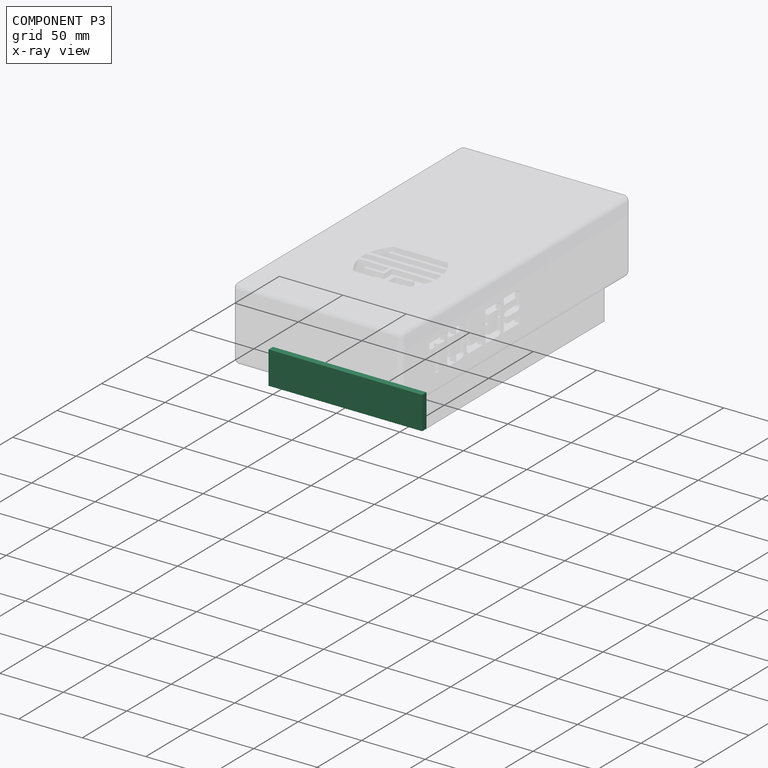
[diagram: component P3 — x-ray view]
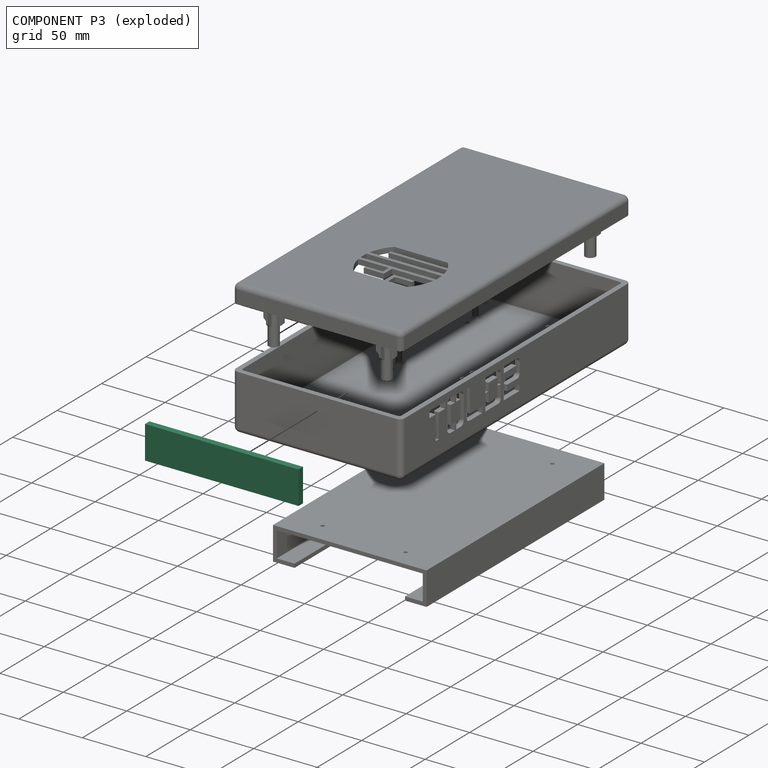
[diagram: component P3 — exploded]
COMPONENT P3 — recipe-attached ("Tapa Pantalla", modeled in this document).
Held by: resting contact with P2 (derived edge).
Construction recipe (the document's own serialized feature program — sketch geometry with constraints, then the solid features built on it; lengths are millimeters unless a unit is written):

FEATURE [Sketcher::SketchObject] Sketch011
  FullyConstrained = false
  MapMode = 5
  Placement = pos=(0,0,0) rot=(1,0,0;1.5708rad)
  Support = -> [XZ_Plane005]
  sketch-geometry (4):
    g0: LineSegment StartX=123 StartY=-30.0082 StartZ=0 EndX=2.00021 EndY=-30.0082 EndZ=0
    g1: LineSegment StartX=2.00021 StartY=-30.0082 StartZ=0 EndX=2.00021 EndY=-4.00825 EndZ=0
    g2: LineSegment StartX=2.00021 StartY=-4.00825 StartZ=0 EndX=123 EndY=-4.00825 EndZ=0
    g3: LineSegment StartX=123 StartY=-4.00825 StartZ=0 EndX=123 EndY=-30.0082 EndZ=0
  constraints (10):
    c: Coincident(g0,g1)
    c: Coincident(g1,g2)
    c: Coincident(g2,g3)
    c: Coincident(g3,g0)
    c: Horizontal(g0)
    c: Horizontal(g2)
    c: Vertical(g1)
    c: Vertical(g3)
    c: DistanceY(g1,g1) = 26
    c: DistanceX(g2,g2) = 121
FEATURE [PartDesign::Pad] Pad009
  Direction = (0,-1,2e-16)
  Length = 5
  Length2 = 10
  Placement = pos=(0,0,0) rot=(1,0,0;1.5708rad)
  Profile = -> Sketch011
  ReferenceAxis = -> Sketch011 [N_Axis]
  Type = 0
FEATURE [PartDesign::Body] Body003
  Group = -> [Sketch011,Pad009]
  Origin = -> Origin007
  Tip = -> Pad009
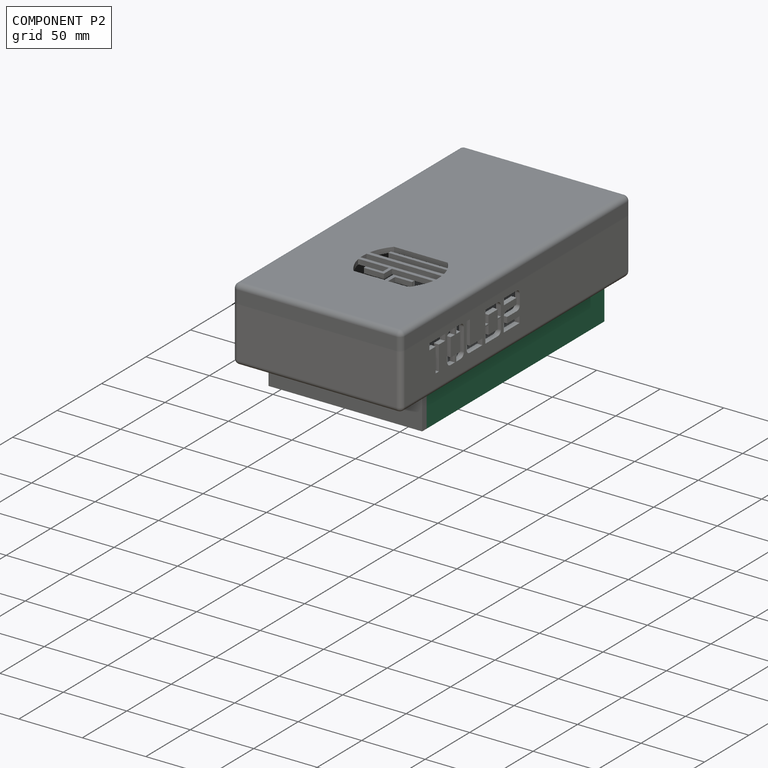
[diagram: component P2 — assembled]
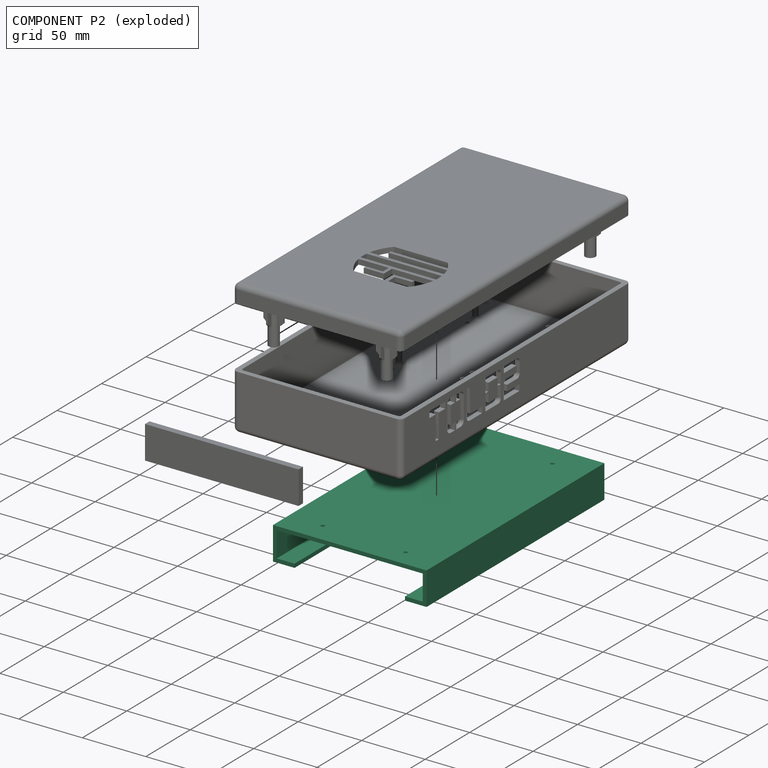
[diagram: component P2 — exploded]
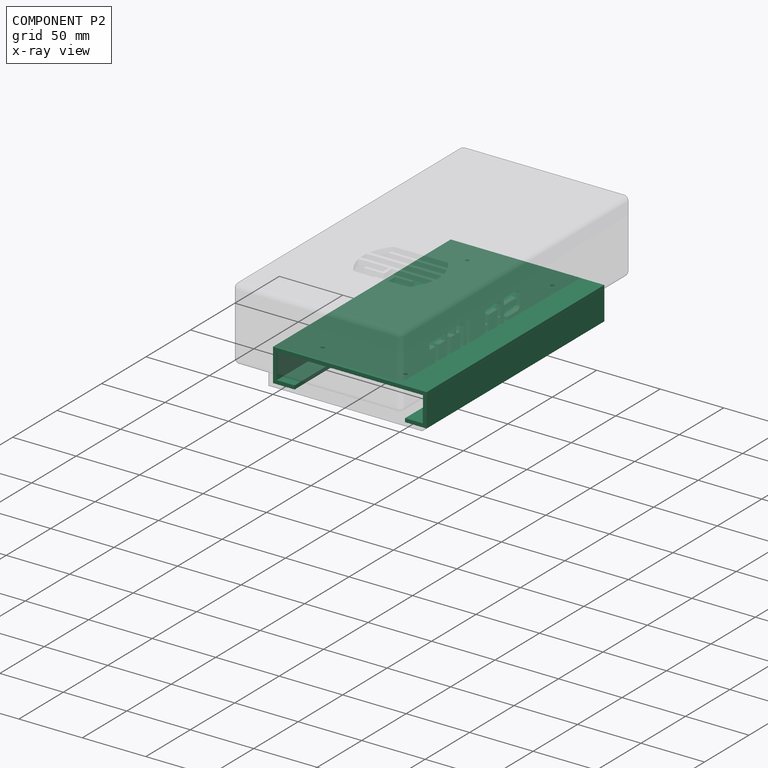
[diagram: component P2 — x-ray view]
COMPONENT P2 — recipe-attached ("PANTALLA", modeled in this document).
Held by: resting contact with P0 (derived edge); resting contact with P3 (derived edge).
Construction recipe (the document's own serialized feature program — sketch geometry with constraints, then the solid features built on it; lengths are millimeters unless a unit is written):

FEATURE [Sketcher::SketchObject] Sketch010
  FullyConstrained = false
  MapMode = 5
  Placement = pos=(0,0,0) rot=(1,0,0;1.5708rad)
  Support = -> [XZ_Plane003]
  sketch-geometry (16):
    g0: LineSegment StartX=0 StartY=0 StartZ=0 EndX=121 EndY=0 EndZ=0
    g1: LineSegment StartX=121 StartY=0 StartZ=0 EndX=121 EndY=-26 EndZ=0
    g2: LineSegment StartX=121 StartY=-26 StartZ=0 EndX=104 EndY=-26 EndZ=0
    g3: LineSegment StartX=104 StartY=-26 StartZ=0 EndX=104 EndY=-23 EndZ=0
    g4: LineSegment StartX=104 StartY=-23 StartZ=0 EndX=118 EndY=-23 EndZ=0
    g5: LineSegment StartX=118 StartY=-23 StartZ=0 EndX=118 EndY=-3 EndZ=0
    g6: LineSegment StartX=118 StartY=-3 StartZ=0 EndX=3 EndY=-3 EndZ=0
    g7: LineSegment StartX=3 StartY=-3 StartZ=0 EndX=3 EndY=-23 EndZ=0
    g8: LineSegment StartX=3 StartY=-23 StartZ=0 EndX=17 EndY=-23 EndZ=0
    g9: LineSegment StartX=17 StartY=-23 StartZ=0 EndX=17 EndY=-26 EndZ=0
    g10: LineSegment StartX=17 StartY=-26 StartZ=0 EndX=0 EndY=-26 EndZ=0
    g11: LineSegment StartX=0 StartY=-26 StartZ=0 EndX=0 EndY=0 EndZ=0
    g12: LineSegment StartX=118 StartY=-7.53387 StartZ=0 EndX=121 EndY=-7.53387 EndZ=0
    g13: LineSegment StartX=0 StartY=-6.88225 StartZ=0 EndX=3 EndY=-6.88225 EndZ=0
    g14: LineSegment StartX=108.131 StartY=-23 StartZ=0 EndX=108.131 EndY=-26 EndZ=0
    g15: LineSegment StartX=50.5533 StartY=0 StartZ=0 EndX=50.5533 EndY=-3 EndZ=0
  constraints (47):
    c: Coincident(g-1,g0)
    c: PointOnObject(g0,g-1)
    c: Coincident(g0,g1)
    c: Vertical(g1)
    c: Coincident(g1,g2)
    c: Coincident(g2,g3)
    c: Coincident(g3,g4)
    c: Coincident(g4,g5)
    c: Vertical(g5)
    c: Coincident(g5,g6)
    c: Horizontal(g6)
    c: Coincident(g6,g7)
    c: Vertical(g7)
    c: Coincident(g7,g8)
    c: Horizontal(g8)
    c: Coincident(g8,g9)
    c: Coincident(g9,g10)
    c: Horizontal(g10)
    c: Coincident(g10,g11)
    c: Coincident(g11,g0)
    c: Vertical(g11)
    c: Horizontal(g4)
    c: Horizontal(g2)
    c: Vertical(g9)
    c: Vertical(g3)
    c: Equal(g5,g7)
    c: Equal(g11,g1)
    c: Equal(g8,g4)
    c: PointOnObject(g12,g5)
    c: PointOnObject(g12,g1)
    c: Horizontal(g12)
    c: PointOnObject(g13,g11)
    c: PointOnObject(g13,g7)
    c: Horizontal(g13)
    c: Equal(g13,g12)
    c: DistanceX(g12,g12) = 3
    c: PointOnObject(g14,g4)
    c: PointOnObject(g14,g2)
    c: Vertical(g14)
    c: DistanceY(g14,g14) = 3
    c: DistanceY(g7,g7) = 20
    c: PointOnObject(g15,g0)
    c: PointOnObject(g15,g6)
    c: Vertical(g15)
    c: DistanceY(g15,g15) = 3
    c: DistanceX(g8,g8) = 14
    c: DistanceX(g0,g0) = 121
FEATURE [PartDesign::Pad] Pad008
  Direction = (0,-1,-2e-16)
  Length = 200
  Length2 = 10
  Placement = pos=(0,0,0) rot=(1,0,0;1.5708rad)
  Profile = -> Sketch010
  ReferenceAxis = -> Sketch010 [N_Axis]
  Type = 0
FEATURE [Sketcher::SketchObject] Sketch012
  ExternalGeometry = -> [Pad008]
  FullyConstrained = false
  MapMode = 5
  Placement = pos=(0,7e-16,-3) rot=(1,0,0;3.14159rad)
  Support = -> [Pad008]
  sketch-geometry (12):
    g0: Circle CenterX=27 CenterY=182.648 CenterZ=0 NormalX=0 NormalY=0 NormalZ=1 AngleXU=0 Radius=1.25
    g1: Circle CenterX=94 CenterY=185.118 CenterZ=0 NormalX=0 NormalY=0 NormalZ=1 AngleXU=0 Radius=1.25
    g2: Circle CenterX=27 CenterY=20 CenterZ=0 NormalX=0 NormalY=0 NormalZ=1 AngleXU=0 Radius=1.25
    g3: Circle CenterX=94 CenterY=20 CenterZ=0 NormalX=0 NormalY=0 NormalZ=1 AngleXU=0 Radius=1.25
    g4: LineSegment StartX=94 StartY=185.118 StartZ=0 EndX=104 EndY=185.118 EndZ=0
    g5: LineSegment StartX=27 StartY=182.648 StartZ=0 EndX=17 EndY=182.648 EndZ=0
    g6: LineSegment StartX=94 StartY=20 StartZ=0 EndX=104 EndY=20 EndZ=0
    g7: LineSegment StartX=27 StartY=20 StartZ=0 EndX=17 EndY=20 EndZ=0
    g8: LineSegment StartX=17 StartY=182.648 StartZ=0 EndX=16.9988 EndY=202.648 EndZ=0
    g9: LineSegment StartX=104 StartY=185.118 StartZ=0 EndX=104 EndY=205.118 EndZ=0
    g10: LineSegment StartX=27 StartY=20 StartZ=0 EndX=27 EndY=0 EndZ=0
    g11: LineSegment StartX=94 StartY=20 StartZ=0 EndX=94 EndY=0 EndZ=0
  constraints (34):
    c: Coincident(g4,g1)
    c: PointOnObject(g4,g-3)
    c: Coincident(g5,g0)
    c: PointOnObject(g5,g-4)
    c: Horizontal(g5)
    c: Equal(g1,g0)
    c: Equal(g0,g3)
    c: Equal(g3,g2)
    c: Radius(g3) = 1.25
    c: Coincident(g6,g3)
    c: PointOnObject(g6,g-3)
    c: Horizontal(g6)
    c: Coincident(g7,g2)
    c: PointOnObject(g7,g-4)
    c: Equal(g7,g6)
    c: Equal(g6,g5)
    c: DistanceX(g4,g4) = 10
    c: Coincident(g8,g5)
    c: DistanceY(g8,g8) = 20
    c: Coincident(g9,g4)
    c: Vertical(g9)
    c: DistanceY(g9,g9) = 20
    c: Horizontal(g4)
    c: Horizontal(g7)
    c: Coincident(g10,g2)
    c: PointOnObject(g10,g-5)
    c: Vertical(g10)
    c: DistanceY(g10,g10) = 20
    c: Coincident(g11,g3)
    c: PointOnObject(g11,g-5)
    c: Vertical(g11)
    c: DistanceY(g11,g11) = 20
    c: DistanceX(g7,g7) = 10
    c: DistanceX(g6,g6) = 10
FEATURE [PartDesign::Hole] Hole
  BaseFeature = -> Pad008
  CustomThreadClearance = 0
  Depth = 475.095
  DepthType = 1
  Diameter = 2.9
  DrillForDepth = false
  DrillPoint = 1
  DrillPointAngle = 118
  HoleCutCountersinkAngle = 90
  HoleCutCustomValues = false
  HoleCutDepth = 2.61
  HoleCutDiameter = 6.1
  HoleCutType = 1
  ModelThread = false
  Placement = pos=(0,0,0) rot=(1,0,0;1.5708rad)
  Profile = -> Sketch012
  Tapered = false
  TaperedAngle = 90
  ThreadClass = 0
  ThreadDepth = 475.095
  ThreadDepthType = 0
  ThreadDirection = 0
  ThreadFit = 0
  ThreadSize = 0
  ThreadType = 0
  Threaded = false
  UseCustomThreadClearance = false
FEATURE [PartDesign::Body] Body002
  Group = -> [Sketch010,Pad008,Sketch012,Hole]
  Origin = -> Origin005
  Tip = -> Hole
PROVENANCE & LICENSES
Assembly and component geometry: a FreeCAD (.FCStd) document from a public repository crawl; components, placements and joints were extracted with FreeCAD and each solid tessellated.
Construction recipes: the document's own serialized feature recipes (and, for linked parts, the recipes of companion documents from the same project).
License: as declared in the source repository (recorded in the dataset sidecar).
Joints: native FreeCAD joints and A2plus constraints are mapped to standard mate types; edges marked 'derived from contact' connect touching components and are measured from the geometry, not modeled.
Verification: 4 of this assembly's 4 components carry a construction recipe (4 from this document itself); the rest are geometry-only. Every component's tessellation passed the extraction mesh gates (mesh-volume checksum against the B-rep where available, bounding-box inflation <= 2%).
Renders: orthographic iso camera (az 35 / el 25); the floor grid conveys scale (grid pitch printed in each image; no ruler). In the exploded view each component is displaced by its stored offset vector: the offsets alone carry the explosion direction (mate normal/axis signs are not orientation cues and do not encode it), and separation distances are assigned per mate-chain, not proportionally to assembly-order depth.
